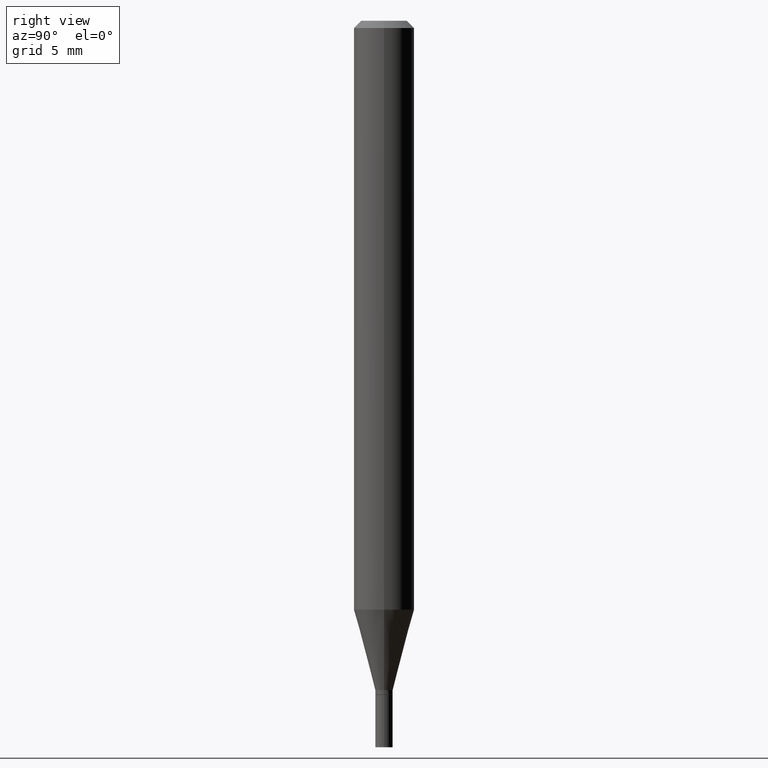
[diagram: clean part render]
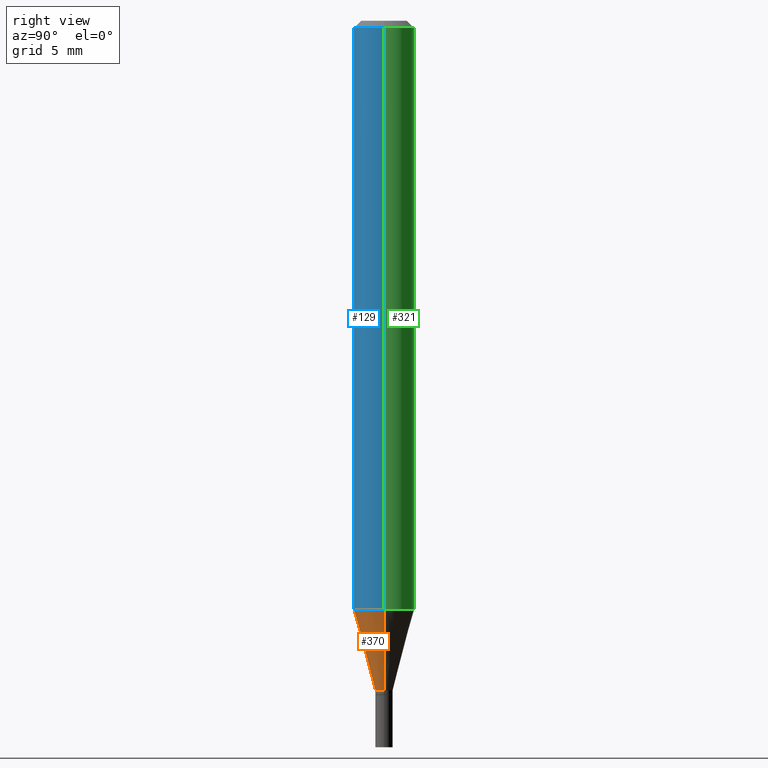
[diagram: same view with three faces highlighted in distinct colors, each labeled with its STEP entity id]
A machine part, right view with three faces highlighted in distinct colors.
Their STEP definitions:

[orange] entity #370 — the highlighted conical surface has half-angle 15 deg.
#6 = ORIENTED_EDGE ( 'NONE', *, *, #68, .T. ) ;
#26 = DIRECTION ( 'NONE',  ( -2.445468806185136597E-29, 3.491481338843145583E-15, 1.000000000000000000 ) ) ;
#39 = VERTEX_POINT ( 'NONE', #62 ) ;
#62 = CARTESIAN_POINT ( 'NONE',  ( -0.01799999999999991884, -4.249307676194920787E-15, -1.382000000000000117 ) ) ;
#68 = EDGE_CURVE ( 'NONE', #108, #141, #424, .T. ) ;
#74 = EDGE_LOOP ( 'NONE', ( #226, #272, #6, #379 ) ) ;
#92 = CARTESIAN_POINT ( 'NONE',  ( 3.379637890147859239E-29, -4.825227210281227557E-15, -1.382000000000000117 ) ) ;
#96 = CARTESIAN_POINT ( 'NONE',  ( 0.06250000000000001388, -4.681810211750884871E-15, -1.215923739063185183 ) ) ;
#106 = CONICAL_SURFACE ( 'NONE', #143, 0.01799999999999991884, 0.2617993877991499074 ) ;
#108 = VERTEX_POINT ( 'NONE', #170 ) ;
#141 = VERTEX_POINT ( 'NONE', #96 ) ;
#143 = AXIS2_PLACEMENT_3D ( 'NONE', #92, #161, #207 ) ;
#149 = AXIS2_PLACEMENT_3D ( 'NONE', #365, #26, #342 ) ;
#161 = DIRECTION ( 'NONE',  ( -2.445468806185136597E-29, 3.491481338843145583E-15, 1.000000000000000000 ) ) ;
#170 = CARTESIAN_POINT ( 'NONE',  ( 0.01799999999999991884, -4.950920538479579759E-15, -1.382000000000000117 ) ) ;
#197 = EDGE_CURVE ( 'NONE', #348, #141, #229, .T. ) ;
#207 = DIRECTION ( 'NONE',  ( 1.000000000000000000, -6.982962677686256455E-15, 0.000000000000000000 ) ) ;
#225 = EDGE_CURVE ( 'NONE', #39, #348, #252, .T. ) ;
#226 = ORIENTED_EDGE ( 'NONE', *, *, #225, .F. ) ;
#229 = CIRCLE ( 'NONE', #149, 0.06250000000000000000 ) ;
#236 = CARTESIAN_POINT ( 'NONE',  ( 0.01799999999999991884, -4.950920538479579759E-15, -1.382000000000000117 ) ) ;
#242 = FACE_OUTER_BOUND ( 'NONE', #74, .T. ) ;
#246 = DIRECTION ( 'NONE',  ( 1.000000000000000000, -6.982962677686256455E-15, 0.000000000000000000 ) ) ;
#252 = LINE ( 'NONE', #371, #291 ) ;
#262 = DIRECTION ( 'NONE',  ( -0.2588190451025211836, 5.211531920934547886E-15, 0.9659258262890679791 ) ) ;
#272 = ORIENTED_EDGE ( 'NONE', *, *, #357, .T. ) ;
#291 = VECTOR ( 'NONE', #262, 39.37007874015748854 ) ;
#302 = CIRCLE ( 'NONE', #463, 0.01799999999999991884 ) ;
#307 = CARTESIAN_POINT ( 'NONE',  ( -0.06250000000000001388, -3.801285834545430586E-15, -1.215923739063185183 ) ) ;
#324 = DIRECTION ( 'NONE',  ( 0.2588190451025211836, 1.565188264969622559E-15, 0.9659258262890679791 ) ) ;
#342 = DIRECTION ( 'NONE',  ( 1.000000000000000000, -6.982962677686270655E-15, 0.000000000000000000 ) ) ;
#348 = VERTEX_POINT ( 'NONE', #307 ) ;
#357 = EDGE_CURVE ( 'NONE', #39, #108, #302, .T. ) ;
#365 = CARTESIAN_POINT ( 'NONE',  ( 2.973503574579014958E-29, -4.245375044395493202E-15, -1.215923739063185183 ) ) ;
#370 = ADVANCED_FACE ( 'NONE', ( #242 ), #106, .T. ) ;
#371 = CARTESIAN_POINT ( 'NONE',  ( -0.01799999999999991884, -4.697329517844410199E-15, -1.382000000000000117 ) ) ;
#379 = ORIENTED_EDGE ( 'NONE', *, *, #197, .F. ) ;
#384 = VECTOR ( 'NONE', #324, 39.37007874015748854 ) ;
#418 = DIRECTION ( 'NONE',  ( -2.445468806185136597E-29, 3.491481338843145583E-15, 1.000000000000000000 ) ) ;
#424 = LINE ( 'NONE', #236, #384 ) ;
#442 = CARTESIAN_POINT ( 'NONE',  ( 3.379637890147859239E-29, -4.825227210281227557E-15, -1.382000000000000117 ) ) ;
#463 = AXIS2_PLACEMENT_3D ( 'NONE', #442, #418, #246 ) ;

[blue] entity #129 — the highlighted cylindrical surface (edge-blend (fillet) strip) has radius 1.5875 mm, axis along (-0, 0, 1).
#26 = DIRECTION ( 'NONE',  ( -2.445468806185136597E-29, 3.491481338843145583E-15, 1.000000000000000000 ) ) ;
#34 = DIRECTION ( 'NONE',  ( -2.445468806185136877E-29, 3.491481338843145188E-15, 1.000000000000000000 ) ) ;
#57 = EDGE_CURVE ( 'NONE', #348, #80, #130, .T. ) ;
#67 = DIRECTION ( 'NONE',  ( 1.000000000000000000, -6.982962677686266711E-15, 0.000000000000000000 ) ) ;
#73 = DIRECTION ( 'NONE',  ( -2.445468806185136597E-29, 3.491481338843145583E-15, 1.000000000000000000 ) ) ;
#76 = AXIS2_PLACEMENT_3D ( 'NONE', #301, #73, #67 ) ;
#80 = VERTEX_POINT ( 'NONE', #168 ) ;
#81 = VECTOR ( 'NONE', #422, 39.37007874015748143 ) ;
#96 = CARTESIAN_POINT ( 'NONE',  ( 0.06250000000000001388, -4.681810211750884871E-15, -1.215923739063185183 ) ) ;
#107 = CARTESIAN_POINT ( 'NONE',  ( 0.06250000000000000000, -4.364351673553916694E-16, 3.047610484872459871E-30 ) ) ;
#116 = VERTEX_POINT ( 'NONE', #162 ) ;
#124 = CARTESIAN_POINT ( 'NONE',  ( 0.000000000000000000, 0.000000000000000000, 0.000000000000000000 ) ) ;
#129 = ADVANCED_FACE ( 'NONE', ( #320 ), #245, .T. ) ;
#130 = LINE ( 'NONE', #166, #81 ) ;
#141 = VERTEX_POINT ( 'NONE', #96 ) ;
#149 = AXIS2_PLACEMENT_3D ( 'NONE', #365, #26, #342 ) ;
#155 = ORIENTED_EDGE ( 'NONE', *, *, #293, .F. ) ;
#162 = CARTESIAN_POINT ( 'NONE',  ( 0.06250000000000000000, -4.888073874380388472E-16, -0.01499999999999999944 ) ) ;
#166 = CARTESIAN_POINT ( 'NONE',  ( -0.06250000000000000000, 4.440892098500626162E-16, -3.074334431409316114E-30 ) ) ;
#168 = CARTESIAN_POINT ( 'NONE',  ( -0.06250000000000000000, -1.704784422389007524E-15, -0.01499999999999999944 ) ) ;
#197 = EDGE_CURVE ( 'NONE', #348, #141, #229, .T. ) ;
#213 = LINE ( 'NONE', #107, #309 ) ;
#216 = EDGE_LOOP ( 'NONE', ( #332, #417, #378, #155 ) ) ;
#229 = CIRCLE ( 'NONE', #149, 0.06250000000000000000 ) ;
#245 = CYLINDRICAL_SURFACE ( 'NONE', #273, 0.06250000000000000000 ) ;
#273 = AXIS2_PLACEMENT_3D ( 'NONE', #124, #281, #323 ) ;
#274 = CIRCLE ( 'NONE', #76, 0.06250000000000000000 ) ;
#281 = DIRECTION ( 'NONE',  ( -2.445468806185136597E-29, 3.491481338843145583E-15, 1.000000000000000000 ) ) ;
#293 = EDGE_CURVE ( 'NONE', #80, #116, #274, .T. ) ;
#301 = CARTESIAN_POINT ( 'NONE',  ( 3.668203209277705088E-31, -5.237222008264718399E-17, -0.01499999999999999944 ) ) ;
#307 = CARTESIAN_POINT ( 'NONE',  ( -0.06250000000000001388, -3.801285834545430586E-15, -1.215923739063185183 ) ) ;
#309 = VECTOR ( 'NONE', #34, 39.37007874015748143 ) ;
#310 = EDGE_CURVE ( 'NONE', #141, #116, #213, .T. ) ;
#320 = FACE_OUTER_BOUND ( 'NONE', #216, .T. ) ;
#323 = DIRECTION ( 'NONE',  ( 1.000000000000000000, -6.982962677686266711E-15, 4.876176775795935793E-29 ) ) ;
#332 = ORIENTED_EDGE ( 'NONE', *, *, #57, .F. ) ;
#342 = DIRECTION ( 'NONE',  ( 1.000000000000000000, -6.982962677686270655E-15, 0.000000000000000000 ) ) ;
#348 = VERTEX_POINT ( 'NONE', #307 ) ;
#365 = CARTESIAN_POINT ( 'NONE',  ( 2.973503574579014958E-29, -4.245375044395493202E-15, -1.215923739063185183 ) ) ;
#378 = ORIENTED_EDGE ( 'NONE', *, *, #310, .T. ) ;
#417 = ORIENTED_EDGE ( 'NONE', *, *, #197, .T. ) ;
#422 = DIRECTION ( 'NONE',  ( -2.445468806185136877E-29, 3.491481338843145188E-15, 1.000000000000000000 ) ) ;

[green] entity #321 — the highlighted cylindrical surface (edge-blend (fillet) strip) has radius 1.5875 mm, axis along (-0, 0, 1).
#4 = FACE_OUTER_BOUND ( 'NONE', #448, .T. ) ;
#34 = DIRECTION ( 'NONE',  ( -2.445468806185136877E-29, 3.491481338843145188E-15, 1.000000000000000000 ) ) ;
#41 = ORIENTED_EDGE ( 'NONE', *, *, #310, .F. ) ;
#45 = EDGE_CURVE ( 'NONE', #116, #80, #75, .T. ) ;
#54 = CARTESIAN_POINT ( 'NONE',  ( 2.973503574579014958E-29, -4.245375044395493202E-15, -1.215923739063185183 ) ) ;
#56 = DIRECTION ( 'NONE',  ( 1.000000000000000000, -6.982962677686266711E-15, 0.000000000000000000 ) ) ;
#57 = EDGE_CURVE ( 'NONE', #348, #80, #130, .T. ) ;
#75 = CIRCLE ( 'NONE', #133, 0.06250000000000000000 ) ;
#80 = VERTEX_POINT ( 'NONE', #168 ) ;
#81 = VECTOR ( 'NONE', #422, 39.37007874015748143 ) ;
#96 = CARTESIAN_POINT ( 'NONE',  ( 0.06250000000000001388, -4.681810211750884871E-15, -1.215923739063185183 ) ) ;
#102 = ORIENTED_EDGE ( 'NONE', *, *, #375, .T. ) ;
#107 = CARTESIAN_POINT ( 'NONE',  ( 0.06250000000000000000, -4.364351673553916694E-16, 3.047610484872459871E-30 ) ) ;
#116 = VERTEX_POINT ( 'NONE', #162 ) ;
#120 = DIRECTION ( 'NONE',  ( -2.445468806185136597E-29, 3.491481338843145583E-15, 1.000000000000000000 ) ) ;
#130 = LINE ( 'NONE', #166, #81 ) ;
#133 = AXIS2_PLACEMENT_3D ( 'NONE', #250, #453, #56 ) ;
#141 = VERTEX_POINT ( 'NONE', #96 ) ;
#145 = CYLINDRICAL_SURFACE ( 'NONE', #248, 0.06250000000000000000 ) ;
#162 = CARTESIAN_POINT ( 'NONE',  ( 0.06250000000000000000, -4.888073874380388472E-16, -0.01499999999999999944 ) ) ;
#163 = DIRECTION ( 'NONE',  ( 1.000000000000000000, -6.982962677686270655E-15, 0.000000000000000000 ) ) ;
#166 = CARTESIAN_POINT ( 'NONE',  ( -0.06250000000000000000, 4.440892098500626162E-16, -3.074334431409316114E-30 ) ) ;
#168 = CARTESIAN_POINT ( 'NONE',  ( -0.06250000000000000000, -1.704784422389007524E-15, -0.01499999999999999944 ) ) ;
#213 = LINE ( 'NONE', #107, #309 ) ;
#220 = CARTESIAN_POINT ( 'NONE',  ( 0.000000000000000000, 0.000000000000000000, 0.000000000000000000 ) ) ;
#224 = ORIENTED_EDGE ( 'NONE', *, *, #45, .F. ) ;
#239 = DIRECTION ( 'NONE',  ( 1.000000000000000000, -6.982962677686266711E-15, 4.876176775795935793E-29 ) ) ;
#248 = AXIS2_PLACEMENT_3D ( 'NONE', #220, #265, #239 ) ;
#250 = CARTESIAN_POINT ( 'NONE',  ( 3.668203209277705088E-31, -5.237222008264718399E-17, -0.01499999999999999944 ) ) ;
#265 = DIRECTION ( 'NONE',  ( -2.445468806185136597E-29, 3.491481338843145583E-15, 1.000000000000000000 ) ) ;
#276 = ORIENTED_EDGE ( 'NONE', *, *, #57, .T. ) ;
#282 = CIRCLE ( 'NONE', #360, 0.06250000000000000000 ) ;
#307 = CARTESIAN_POINT ( 'NONE',  ( -0.06250000000000001388, -3.801285834545430586E-15, -1.215923739063185183 ) ) ;
#309 = VECTOR ( 'NONE', #34, 39.37007874015748143 ) ;
#310 = EDGE_CURVE ( 'NONE', #141, #116, #213, .T. ) ;
#321 = ADVANCED_FACE ( 'NONE', ( #4 ), #145, .T. ) ;
#348 = VERTEX_POINT ( 'NONE', #307 ) ;
#360 = AXIS2_PLACEMENT_3D ( 'NONE', #54, #120, #163 ) ;
#375 = EDGE_CURVE ( 'NONE', #141, #348, #282, .T. ) ;
#422 = DIRECTION ( 'NONE',  ( -2.445468806185136877E-29, 3.491481338843145188E-15, 1.000000000000000000 ) ) ;
#448 = EDGE_LOOP ( 'NONE', ( #102, #276, #224, #41 ) ) ;
#453 = DIRECTION ( 'NONE',  ( -2.445468806185136597E-29, 3.491481338843145583E-15, 1.000000000000000000 ) ) ;